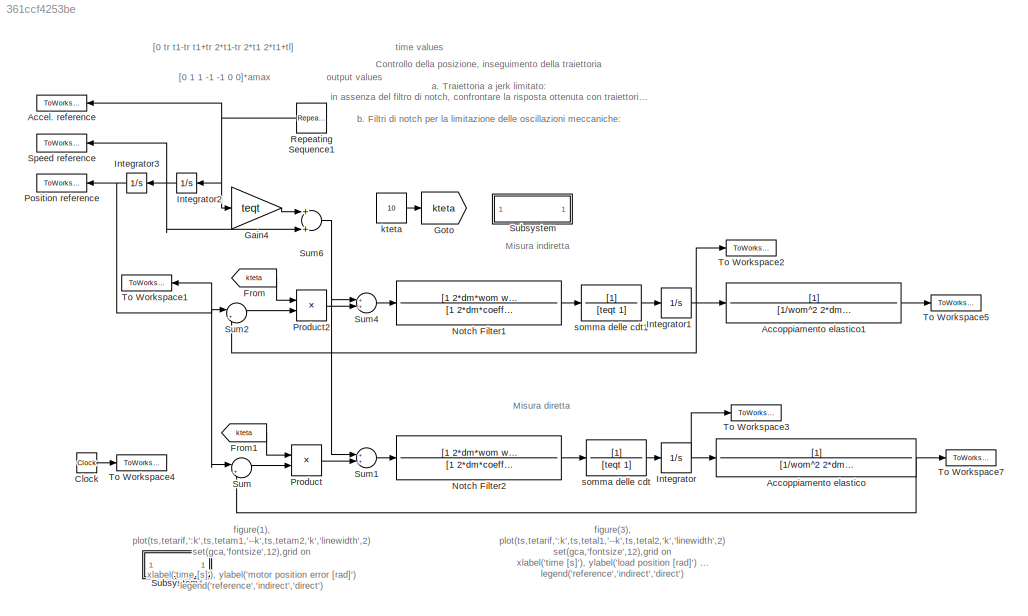
MODEL slx_361ccf4253be
KIND model
CONFIG AbsTol = auto
CONFIG EnableMultiTasking = on
CONFIG FixedStep = fixed_step_size
CONFIG MaxStep = auto
CONFIG MinStep = auto
CONFIG RelTol = 1e-3
CONFIG SampleTimeConstraint = Unconstrained
CONFIG Solver = ode4
CONFIG SolverName = ode4
CONFIG StartTime = 0.0
CONFIG StopTime = 1.6
BLOCK [ToWorkspace] Accel. reference
  MaxDataPoints = 1e6
  OpenFcn = figure(5);\nplot(ts,arif,'k','linewidth',2)\nxlabel('time [s]');\nylabel('acceleration [rad/s^2]');\ntitle('acceleration trajectory')
  Ports = [1]
  VariableName = arif
BLOCK [TransferFcn] Accoppiamento elastico
  Denominator = [1/wom^2 2*dm/wom 1]
BLOCK [TransferFcn] Accoppiamento elastico1
  Denominator = [1/wom^2 2*dm/wom 1]
BLOCK [Clock] Clock
  Decimation = 1
BLOCK [From] From
  CloseFcn = tagdialog Close
  GotoTag = kteta
BLOCK [From] From1
  CloseFcn = tagdialog Close
  GotoTag = kteta
BLOCK [Gain] Gain4
  Gain = teqt
BLOCK [Goto] Goto
  GotoTag = kteta
BLOCK [Integrator] Integrator
  Ports = [1, 1]
BLOCK [Integrator] Integrator1
  Ports = [1, 1]
BLOCK [Integrator] Integrator2
  Ports = [1, 1]
BLOCK [Integrator] Integrator3
  InitialCondition = teta0
  Ports = [1, 1]
BLOCK [TransferFcn] Notch Filter1
  Denominator = [1 2*dm*coeff*wom wom^2]
  Numerator = [1 2*dm*wom wom^2]
BLOCK [TransferFcn] Notch Filter2
  Denominator = [1 2*dm*coeff*wom wom^2]
  Numerator = [1 2*dm*wom wom^2]
BLOCK [ToWorkspace] Position reference
  MaxDataPoints = 1e6
  Ports = [1]
  VariableName = tetarif1
BLOCK [Product] Product
  InputSameDT = off
  OutDataTypeStr = Inherit: Inherit via internal rule
  Ports = [2, 1]
  SaturateOnIntegerOverflow = off
BLOCK [Product] Product2
  InputSameDT = off
  OutDataTypeStr = Inherit: Inherit via internal rule
  Ports = [2, 1]
  SaturateOnIntegerOverflow = off
BLOCK [Reference] Repeating Sequence1  REF=simulink/Sources/Repeating
Sequence
  Ports = [0, 1]
  SourceBlock = simulink/Sources/Repeating\nSequence
  SourceProductBaseCode = SL
  SourceProductName = Simulink
  SourceType = Repeating table
BLOCK [ToWorkspace] Speed reference
  MaxDataPoints = 1e6
  Ports = [1]
  VariableName = wrif
BLOCK [SubSystem] Subsystem
  OpenFcn = CAE_11d_2013
  Ports = []
  RequestExecContextInheritance = off
BLOCK [SubSystem] Subsystem1
  OpenFcn = figure(1),                                                       \nplot(ts,tetarif,':k',ts,tetam1,'--k',ts,tetam2,'k','linewidth',2)\nset(gca,'fontsize',12),grid on                                   \nxlabel('time [s]')                                               \nylabel('motor position [rad]')                                   \nlegend('reference','indirect','direct')                          \n    ...<+1277ch>
  Ports = []
  RequestExecContextInheritance = off
BLOCK [Sum] Sum
  IconShape = round
  InputSameDT = off
  Inputs = |+-
  OutDataTypeStr = Inherit: Inherit via internal rule
  Ports = [2, 1]
  SaturateOnIntegerOverflow = off
BLOCK [Sum] Sum1
  Ports = [2, 1]
BLOCK [Sum] Sum2
  IconShape = round
  InputSameDT = off
  Inputs = |+-
  OutDataTypeStr = Inherit: Inherit via internal rule
  Ports = [2, 1]
  SaturateOnIntegerOverflow = off
BLOCK [Sum] Sum4
  Ports = [2, 1]
BLOCK [Sum] Sum6
  Ports = [2, 1]
BLOCK [ToWorkspace] To Workspace1
  MaxDataPoints = inf
  Ports = [1]
  VariableName = tetarif
BLOCK [ToWorkspace] To Workspace2
  MaxDataPoints = inf
  Ports = [1]
  VariableName = tetam1
BLOCK [ToWorkspace] To Workspace3
  MaxDataPoints = inf
  Ports = [1]
  VariableName = tetam2
BLOCK [ToWorkspace] To Workspace4
  MaxDataPoints = inf
  Ports = [1]
  VariableName = ts
BLOCK [ToWorkspace] To Workspace5
  MaxDataPoints = inf
  Ports = [1]
  VariableName = tetal1
BLOCK [ToWorkspace] To Workspace7
  MaxDataPoints = inf
  Ports = [1]
  VariableName = tetal2
BLOCK [Constant] kteta
  Value = 10
BLOCK [TransferFcn] somma delle cdt
  Denominator = [teqt 1]
BLOCK [TransferFcn] somma delle cdt1
  Denominator = [teqt 1]
ANNOTATION (root): Controllo della posizione, inseguimento della traiettoria a. Traiettoria a jerk limitato: in assenza del filtro di notch, confrontare la risposta ottenuta con traiettoria 1 e 2 b. Filtri di notch per la limitazione delle oscillazioni meccaniche: utilizzando la traiettoria 1, introdurre il filtro di notch per minimizzare l'errore di posizionamento
ANNOTATION (root): Misura diretta
ANNOTATION (root): Misura indiretta
ANNOTATION (root): [0 1 1 -1 -1 0 0]*amax
ANNOTATION (root): [0 tr t1-tr t1+tr 2*t1-tr 2*t1 2*t1+tl]
ANNOTATION (root): figure(1), plot(ts,tetarif,':k',ts,tetam1,'--k',ts,tetam2,'k','linewidth',2) set(gca,'fontsize',12),grid on xlabel('time [s]'), ylabel('motor position error [rad]') legend('reference','indirect','direct') figure(2), plot(ts,tetarif-tetam1,'--k',ts,tetarif-tetam2,'k','linewidth',2) set(gca,'fontsize',12),grid on xlabel('time [s]'), ylabel('motor position error [rad]') legend('indirect','direct')
ANNOTATION (root): figure(3), plot(ts,tetarif,':k',ts,tetal1,'--k',ts,tetal2,'k','linewidth',2) set(gca,'fontsize',12),grid on xlabel('time [s]'), ylabel('load position [rad]') legend('reference','indirect','direct') figure(4), plot(ts,tetarif-tetal1,'--k',ts,tetarif-tetal2,'k','linewidth',2) set(gca,'fontsize',12),grid on xlabel('time [s]'), ylabel('load position error [rad]') legend('indirect','direct')
ANNOTATION (root): output values
ANNOTATION (root): time values
LINE Accoppiamento elastico1:1 -> To Workspace5:1
NET Accoppiamento elastico:1 -> Sum:2, To Workspace7:1
LINE Clock:1 -> To Workspace4:1
LINE From1:1 -> Product:1
LINE From:1 -> Product2:1
LINE Gain4:1 -> Sum6:1
NET Integrator1:1 -> Accoppiamento elastico1:1, Sum2:2, To Workspace2:1
NET Integrator2:1 -> Integrator3:1, Speed reference:1, Sum6:2
NET Integrator3:1 -> Position reference:1, Sum2:1, Sum:1, To Workspace1:1
NET Integrator:1 -> Accoppiamento elastico:1, To Workspace3:1
LINE Notch Filter1:1 -> somma delle cdt1:1
LINE Notch Filter2:1 -> somma delle cdt:1
LINE Product2:1 -> Sum4:2
LINE Product:1 -> Sum1:2
NET Repeating Sequence1:1 -> Accel. reference:1, Gain4:1, Integrator2:1
LINE Sum1:1 -> Notch Filter2:1
LINE Sum2:1 -> Product2:2
LINE Sum4:1 -> Notch Filter1:1
NET Sum6:1 -> Sum1:1, Sum4:1
LINE Sum:1 -> Product:2
LINE kteta:1 -> Goto:1
LINE somma delle cdt1:1 -> Integrator1:1
LINE somma delle cdt:1 -> Integrator:1
note: NET lines group one-source signal fan-out (src -> all destinations, sorted); 1:1 wires keep LINE
